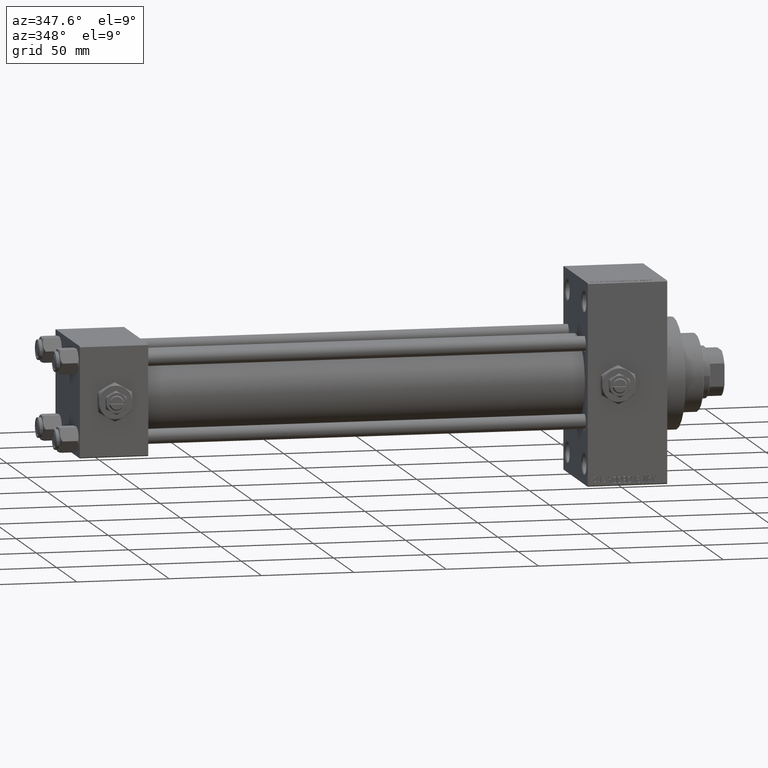
[diagram: clean part render]
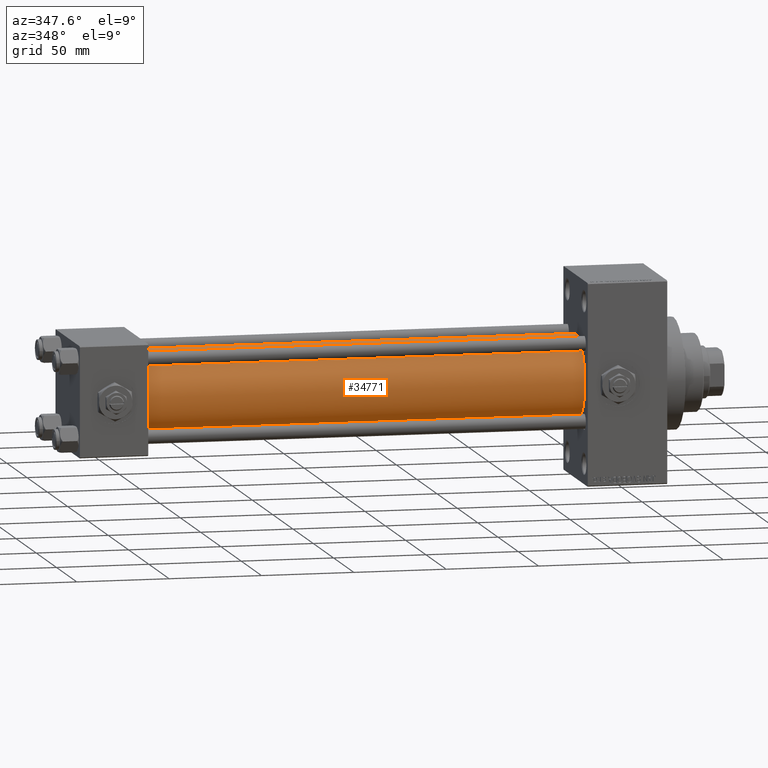
[diagram: same view with one face highlighted and labeled with its STEP entity id]
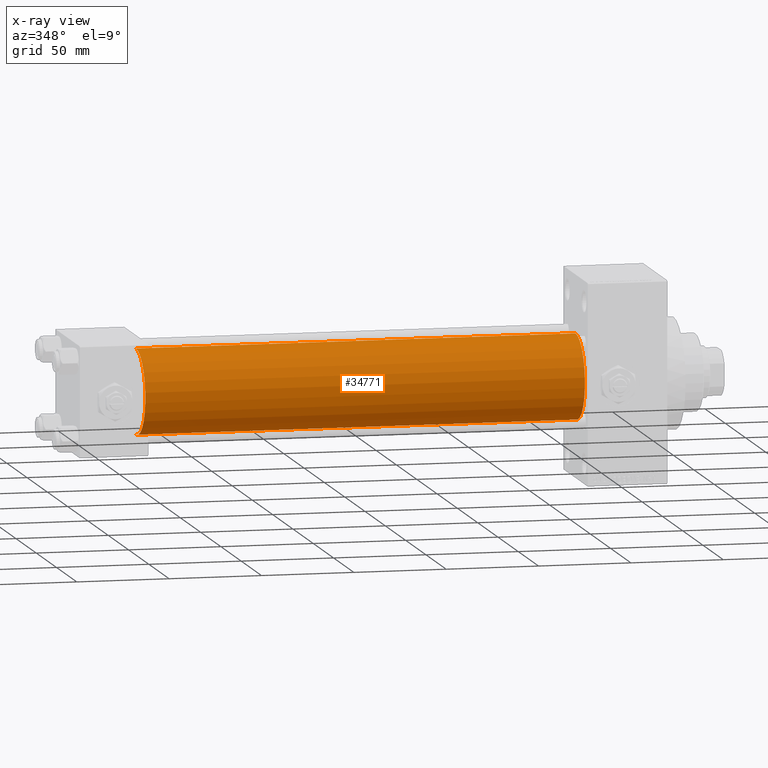
[diagram: x-ray of the same camera — body ghosted, the highlighted face saturated]
A machine part, auxiliary view. The second image highlights one B-rep face of the part: STEP entity #34771.
The next image is the same camera in x-ray: the body ghosted, the highlighted face saturated — about 0% of this face is hidden behind the body in this view.
In plain terms, the highlighted cylindrical surface (partial cylindrical patch) has radius 23 mm, axis along (-1, -0, -0).
Its self-contained STEP definition (entity closure, byte-faithful):
#6235 = VERTEX_POINT ( 'NONE', #45400 ) ;
#7886 = CIRCLE ( 'NONE', #35741, 23.00000000000000000 ) ;
#8600 = DIRECTION ( 'NONE',  ( 0.000000000000000000, 0.000000000000000000, 1.000000000000000000 ) ) ;
#10771 = CARTESIAN_POINT ( 'NONE',  ( 274.9999999999999432, 2.146024240737016609E-16, -23.00000000000000000 ) ) ;
#11038 = CARTESIAN_POINT ( 'NONE',  ( 274.9999999999999432, -2.602085213965210642E-15, 23.00000000000000000 ) ) ;
#11044 = EDGE_LOOP ( 'NONE', ( #22223, #42884, #16624, #37418 ) ) ;
#13304 = CARTESIAN_POINT ( 'NONE',  ( 274.9999999999999432, -2.602085213965210642E-15, 0.000000000000000000 ) ) ;
#13697 = EDGE_CURVE ( 'NONE', #28411, #18958, #15227, .T. ) ;
#15227 = CIRCLE ( 'NONE', #27984, 23.00000000000000000 ) ;
#16087 = EDGE_CURVE ( 'NONE', #30536, #6235, #7886, .T. ) ;
#16624 = ORIENTED_EDGE ( 'NONE', *, *, #44632, .T. ) ;
#18778 = AXIS2_PLACEMENT_3D ( 'NONE', #13304, #42733, #8600 ) ;
#18958 = VERTEX_POINT ( 'NONE', #45417 ) ;
#20079 = CARTESIAN_POINT ( 'NONE',  ( 37.00000000000000711, -2.602085213965210642E-15, 0.000000000000000000 ) ) ;
#20339 = VECTOR ( 'NONE', #41203, 1000.000000000000000 ) ;
#22223 = ORIENTED_EDGE ( 'NONE', *, *, #32961, .F. ) ;
#22997 = LINE ( 'NONE', #11038, #20339 ) ;
#24043 = FACE_OUTER_BOUND ( 'NONE', #11044, .T. ) ;
#27790 = DIRECTION ( 'NONE',  ( 0.000000000000000000, 0.000000000000000000, 1.000000000000000000 ) ) ;
#27984 = AXIS2_PLACEMENT_3D ( 'NONE', #20079, #31535, #27790 ) ;
#28411 = VERTEX_POINT ( 'NONE', #32327 ) ;
#29238 = DIRECTION ( 'NONE',  ( -1.000000000000000000, -0.000000000000000000, -0.000000000000000000 ) ) ;
#30536 = VERTEX_POINT ( 'NONE', #34006 ) ;
#31535 = DIRECTION ( 'NONE',  ( 1.000000000000000000, -0.000000000000000000, 0.000000000000000000 ) ) ;
#32327 = CARTESIAN_POINT ( 'NONE',  ( 37.00000000000000711, -2.602085213965210642E-15, 23.00000000000000000 ) ) ;
#32935 = CARTESIAN_POINT ( 'NONE',  ( 274.9999999999999432, -2.602085213965210642E-15, 0.000000000000000000 ) ) ;
#32961 = EDGE_CURVE ( 'NONE', #6235, #18958, #49146, .T. ) ;
#34006 = CARTESIAN_POINT ( 'NONE',  ( 274.9999999999999432, -2.602085213965210642E-15, 23.00000000000000000 ) ) ;
#34771 = ADVANCED_FACE ( 'NONE', ( #24043 ), #47446, .T. ) ;
#35741 = AXIS2_PLACEMENT_3D ( 'NONE', #32935, #48130, #49038 ) ;
#36975 = VECTOR ( 'NONE', #29238, 1000.000000000000000 ) ;
#37418 = ORIENTED_EDGE ( 'NONE', *, *, #13697, .T. ) ;
#41203 = DIRECTION ( 'NONE',  ( -1.000000000000000000, -0.000000000000000000, -0.000000000000000000 ) ) ;
#42733 = DIRECTION ( 'NONE',  ( -1.000000000000000000, -0.000000000000000000, -0.000000000000000000 ) ) ;
#42884 = ORIENTED_EDGE ( 'NONE', *, *, #16087, .F. ) ;
#44632 = EDGE_CURVE ( 'NONE', #30536, #28411, #22997, .T. ) ;
#45400 = CARTESIAN_POINT ( 'NONE',  ( 274.9999999999999432, 2.146024240737016609E-16, -23.00000000000000000 ) ) ;
#45417 = CARTESIAN_POINT ( 'NONE',  ( 37.00000000000000711, 2.146024240737016609E-16, -23.00000000000000000 ) ) ;
#47446 = CYLINDRICAL_SURFACE ( 'NONE', #18778, 23.00000000000000000 ) ;
#48130 = DIRECTION ( 'NONE',  ( 1.000000000000000000, 0.000000000000000000, 0.000000000000000000 ) ) ;
#49038 = DIRECTION ( 'NONE',  ( 0.000000000000000000, 0.000000000000000000, -1.000000000000000000 ) ) ;
#49146 = LINE ( 'NONE', #10771, #36975 ) ;